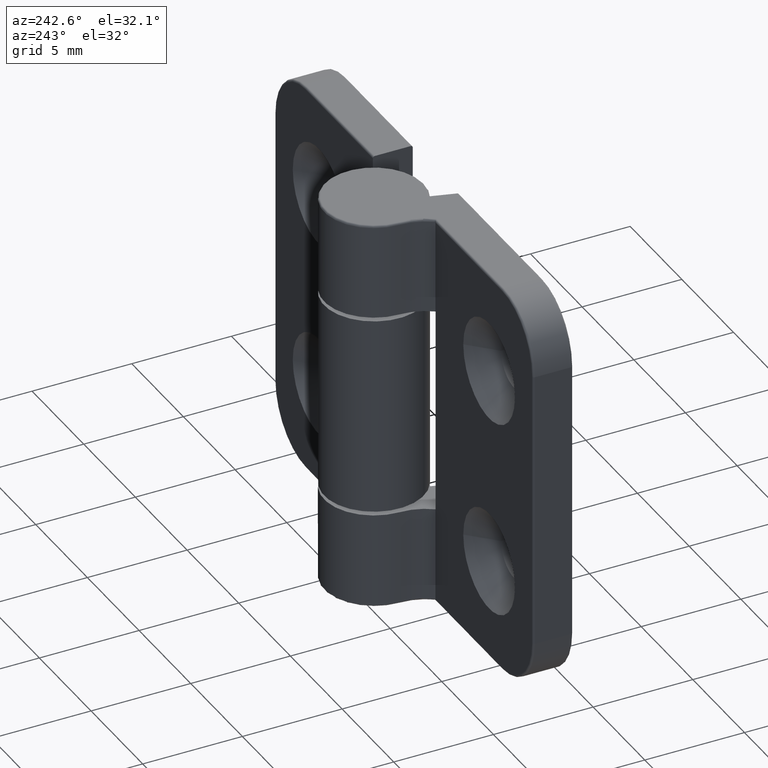
[diagram: clean part render]
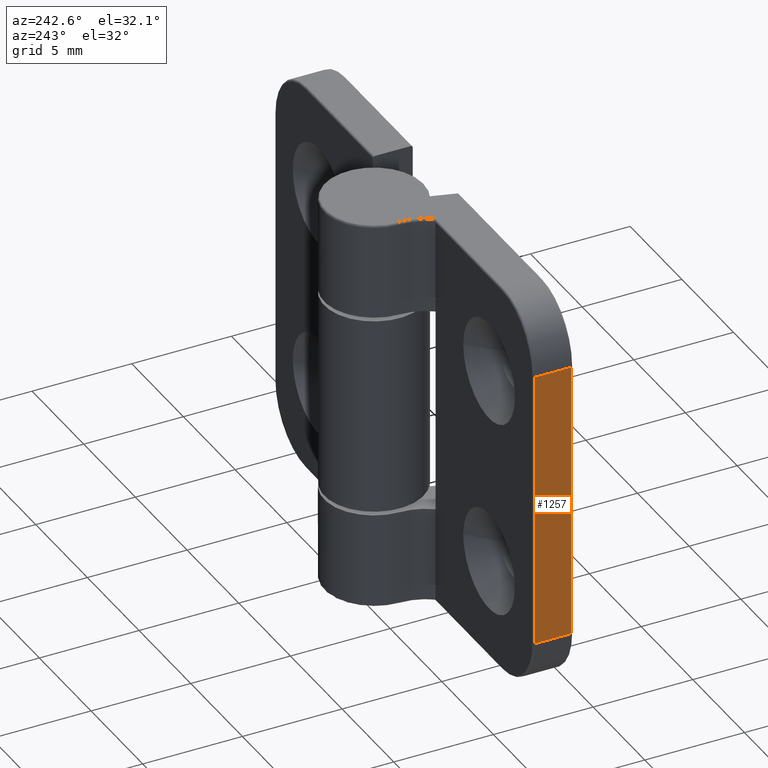
[diagram: same view with one face highlighted and labeled with its STEP entity id]
A machine part, auxiliary view. The second image highlights one B-rep face of the part: STEP entity #1257.
In plain terms, the highlighted planar face has unit normal (-1, -0, 0).
Its self-contained STEP definition (entity closure, byte-faithful):
#82=PLANE('',#1388);
#139=FACE_OUTER_BOUND('',#223,.T.);
#223=EDGE_LOOP('',(#963,#964,#965,#966));
#325=LINE('',#2090,#401);
#331=LINE('',#2135,#407);
#337=LINE('',#2185,#413);
#338=LINE('',#2187,#414);
#401=VECTOR('',#1600,14.);
#407=VECTOR('',#1638,14.);
#413=VECTOR('',#1678,1.8);
#414=VECTOR('',#1681,1.79999999999999);
#583=VERTEX_POINT('',#2082);
#585=VERTEX_POINT('',#2088);
#593=VERTEX_POINT('',#2129);
#594=VERTEX_POINT('',#2133);
#710=EDGE_CURVE('',#585,#583,#325,.T.);
#727=EDGE_CURVE('',#594,#593,#331,.T.);
#744=EDGE_CURVE('',#583,#594,#337,.T.);
#745=EDGE_CURVE('',#593,#585,#338,.T.);
#963=ORIENTED_EDGE('',*,*,#727,.F.);
#964=ORIENTED_EDGE('',*,*,#744,.F.);
#965=ORIENTED_EDGE('',*,*,#710,.F.);
#966=ORIENTED_EDGE('',*,*,#745,.F.);
#1257=ADVANCED_FACE('',(#139),#82,.T.);
#1388=AXIS2_PLACEMENT_3D('',#2186,#1679,#1680);
#1600=DIRECTION('',(0.,0.,-1.));
#1638=DIRECTION('',(0.,0.,1.));
#1678=DIRECTION('',(-1.11022302462516E-15,1.,0.));
#1679=DIRECTION('center_axis',(-1.,-1.11022302462516E-15,0.));
#1680=DIRECTION('ref_axis',(1.06581410364015E-15,-1.,0.));
#1681=DIRECTION('',(1.11022302462516E-15,-1.,0.));
#2082=CARTESIAN_POINT('',(-12.5,0.100000000000003,-7.));
#2088=CARTESIAN_POINT('',(-12.5,0.0999999999999995,7.));
#2090=CARTESIAN_POINT('',(-12.5,0.0999999999999994,0.));
#2129=CARTESIAN_POINT('',(-12.5,1.89999999999999,7.));
#2133=CARTESIAN_POINT('',(-12.5,1.9,-7.));
#2135=CARTESIAN_POINT('',(-12.5,1.9,0.));
#2185=CARTESIAN_POINT('',(-12.5,2.75000001240543,-7.));
#2186=CARTESIAN_POINT('Origin',(-12.5,2.,0.));
#2187=CARTESIAN_POINT('',(-12.5,2.75000001240543,7.));